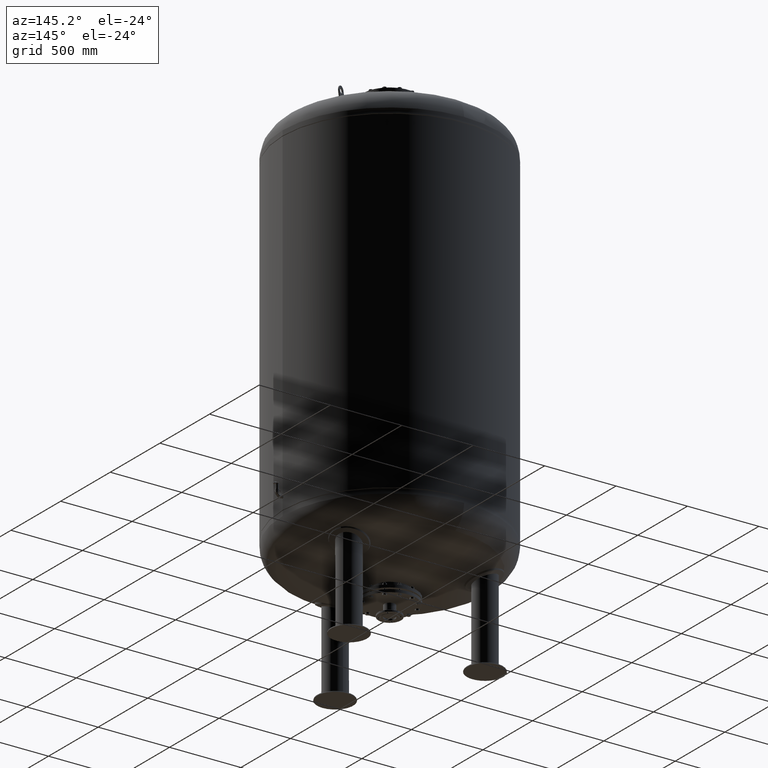
[diagram: clean part render]
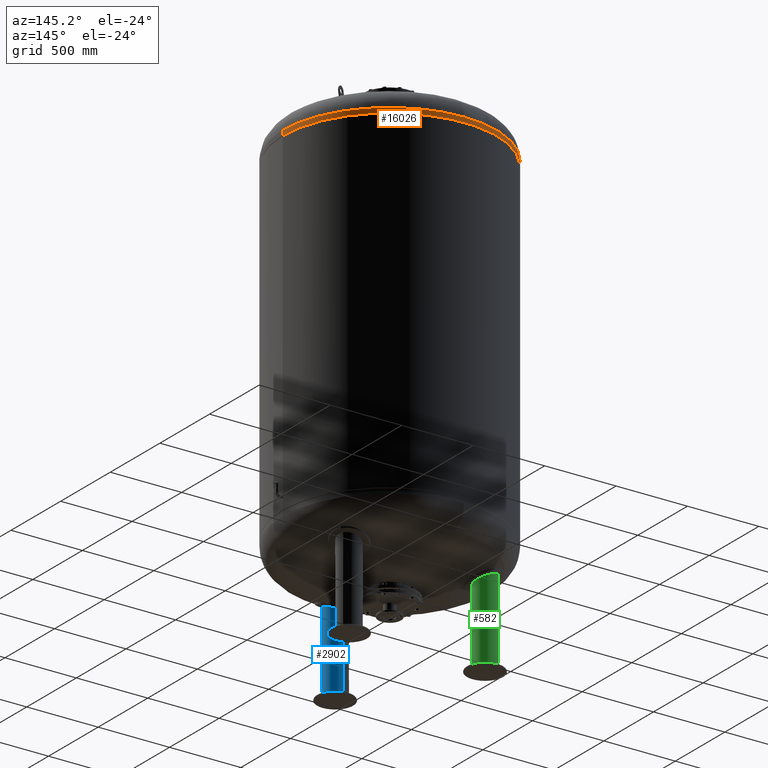
[diagram: same view with three faces highlighted in distinct colors, each labeled with its STEP entity id]
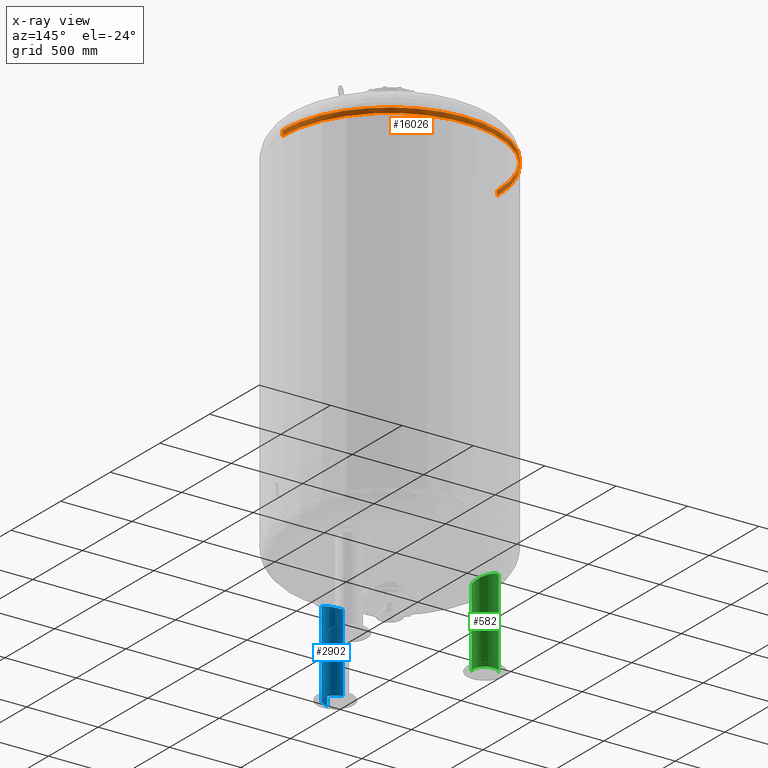
[diagram: x-ray of the same camera — body ghosted, the three highlighted faces saturated]
A machine part, auxiliary view with three faces highlighted in distinct colors.
The next image is the same camera in x-ray (body ghosted, the three faces saturated) — at least one of them is partly hidden behind the body in this view.
Their STEP definitions:

[orange] entity #16026 — the highlighted cylindrical surface (partial cylindrical patch) has radius 750 mm, axis along (0, -0, -1).
#15976=CARTESIAN_POINT('',(1.545938E-014,-5.742715E-014,3196.381166292050700));
#15977=DIRECTION('',(4.945121E-017,-1.836970E-016,-1.0));
#15978=DIRECTION('',(1.0,0.0,0.0));
#15979=AXIS2_PLACEMENT_3D('',#15976,#15977,#15978);
#15980=CYLINDRICAL_SURFACE('',#15979,750.0);
#15981=CARTESIAN_POINT('',(750.0,-6.062002E-014,3179.0));
#15982=VERTEX_POINT('',#15981);
#15983=CARTESIAN_POINT('',(750.0,-5.423428E-014,3213.762332584101800));
#15984=VERTEX_POINT('',#15983);
#15985=CARTESIAN_POINT('',(750.0,-6.062002E-014,3179.0));
#15986=DIRECTION('',(0.0,0.0,1.0));
#15987=VECTOR('',#15986,34.762332584101841);
#15988=LINE('',#15985,#15987);
#15989=EDGE_CURVE('',#15982,#15984,#15988,.T.);
#15990=ORIENTED_EDGE('',*,*,#15989,.F.);
#15991=CARTESIAN_POINT('',(-750.0,3.122546E-014,3179.0));
#15992=VERTEX_POINT('',#15991);
#15993=CARTESIAN_POINT('',(1.631890E-014,-6.062002E-014,3179.0));
#15994=DIRECTION('',(0.0,0.0,-1.0));
#15995=DIRECTION('',(1.0,0.0,0.0));
#15996=AXIS2_PLACEMENT_3D('',#15993,#15994,#15995);
#15997=CIRCLE('',#15996,750.0);
#15998=EDGE_CURVE('',#15992,#15982,#15997,.T.);
#15999=ORIENTED_EDGE('',*,*,#15998,.F.);
#16000=CARTESIAN_POINT('',(-750.0,3.761120E-014,3213.762332584101800));
#16001=VERTEX_POINT('',#16000);
#16002=CARTESIAN_POINT('',(-750.0,3.122546E-014,3179.0));
#16003=DIRECTION('',(0.0,0.0,1.0));
#16004=VECTOR('',#16003,34.762332584101841);
#16005=LINE('',#16002,#16004);
#16006=EDGE_CURVE('',#15992,#16001,#16005,.T.);
#16007=ORIENTED_EDGE('',*,*,#16006,.T.);
#16008=CARTESIAN_POINT('',(1.267436E-013,750.0,3213.762332584101800));
#16009=VERTEX_POINT('',#16008);
#16010=CARTESIAN_POINT('',(1.459986E-014,-5.423428E-014,3213.762332584101800));
#16011=DIRECTION('',(0.0,0.0,-1.0));
#16012=DIRECTION('',(1.0,0.0,0.0));
#16013=AXIS2_PLACEMENT_3D('',#16010,#16011,#16012);
#16014=CIRCLE('',#16013,750.0);
#16015=EDGE_CURVE('',#16001,#16009,#16014,.T.);
#16016=ORIENTED_EDGE('',*,*,#16015,.T.);
#16017=CARTESIAN_POINT('',(1.459986E-014,-5.423428E-014,3213.762332584101800));
#16018=DIRECTION('',(0.0,0.0,-1.0));
#16019=DIRECTION('',(1.0,0.0,0.0));
#16020=AXIS2_PLACEMENT_3D('',#16017,#16018,#16019);
#16021=CIRCLE('',#16020,750.0);
#16022=EDGE_CURVE('',#16009,#15984,#16021,.T.);
#16023=ORIENTED_EDGE('',*,*,#16022,.T.);
#16024=EDGE_LOOP('',(#15990,#15999,#16007,#16016,#16023));
#16025=FACE_OUTER_BOUND('',#16024,.T.);
#16026=ADVANCED_FACE('',(#16025),#15980,.T.);

[blue] entity #2902 — the highlighted cylindrical surface (edge-blend (fillet) strip) has radius 79.5 mm, axis along (0, -0, -1).
#2836=CARTESIAN_POINT('',(-2.905276E-015,-550.0,15.815585141290533));
#2837=DIRECTION('',(1.836970E-016,-3.374460E-032,-1.0));
#2838=DIRECTION('',(0.0,-1.0,0.0));
#2839=AXIS2_PLACEMENT_3D('',#2836,#2837,#2838);
#2840=CYLINDRICAL_SURFACE('',#2839,79.500000000000000);
#2841=CARTESIAN_POINT('',(-1.674052E-014,-629.500000000000000,11.631170282581067));
#2842=VERTEX_POINT('',#2841);
#2843=CARTESIAN_POINT('',(-1.284913E-013,-629.500000000000680,619.974328976416250));
#2844=VERTEX_POINT('',#2843);
#2845=CARTESIAN_POINT('',(-1.674052E-014,-629.500000000000000,11.631170282581067));
#2846=DIRECTION('',(0.0,0.0,1.0));
#2847=VECTOR('',#2846,608.343158693835220);
#2848=LINE('',#2845,#2847);
#2849=EDGE_CURVE('',#2842,#2844,#2848,.T.);
#2850=ORIENTED_EDGE('',*,*,#2849,.F.);
#2851=CARTESIAN_POINT('',(2.220292E-014,-470.500000000000000,11.631170282581067));
#2852=VERTEX_POINT('',#2851);
#2853=CARTESIAN_POINT('',(-2.136611E-015,-550.0,11.631170282581067));
#2854=DIRECTION('',(0.0,0.0,-1.0));
#2855=DIRECTION('',(0.0,-1.0,0.0));
#2856=AXIS2_PLACEMENT_3D('',#2853,#2854,#2855);
#2857=CIRCLE('',#2856,79.500000000000000);
#2858=EDGE_CURVE('',#2852,#2842,#2857,.T.);
#2859=ORIENTED_EDGE('',*,*,#2858,.F.);
#2860=CARTESIAN_POINT('',(-7.182689E-014,-470.500000000000000,557.801446445446690));
#2861=VERTEX_POINT('',#2860);
#2862=CARTESIAN_POINT('',(2.220292E-014,-470.500000000000000,11.631170282581067));
#2863=DIRECTION('',(0.0,0.0,1.0));
#2864=VECTOR('',#2863,546.170276162865660);
#2865=LINE('',#2862,#2864);
#2866=EDGE_CURVE('',#2852,#2861,#2865,.T.);
#2867=ORIENTED_EDGE('',*,*,#2866,.T.);
#2868=CARTESIAN_POINT('',(79.496546794574527,-549.259022444332230,588.259208461118420));
#2869=VERTEX_POINT('',#2868);
#2870=CARTESIAN_POINT('',(-7.182689E-014,-470.500000000000000,557.801446445446690));
#2871=CARTESIAN_POINT('',(8.120663509625709,-470.500000000000000,557.801446445446690));
#2872=CARTESIAN_POINT('',(16.181797699724985,-471.744255828588280,558.277369662588170));
#2873=CARTESIAN_POINT('',(33.164619714983132,-477.098435150620050,560.328261777430270));
#2874=CARTESIAN_POINT('',(41.714366610406451,-481.657352020981760,562.075596332598020));
#2875=CARTESIAN_POINT('',(57.102984846283050,-493.777642472443740,566.734659420112730));
#2876=CARTESIAN_POINT('',(63.659291648246828,-501.375090312636760,569.661195647944850));
#2877=CARTESIAN_POINT('',(73.982822936199739,-519.024244692127350,576.486089468713540));
#2878=CARTESIAN_POINT('',(77.408940630037023,-529.089375858457290,580.391859104990320));
#2879=CARTESIAN_POINT('',(79.232830525971281,-542.704310446537420,585.699021239809100));
#2880=CARTESIAN_POINT('',(79.466003833415044,-545.982189128008940,586.978453284904390));
#2881=CARTESIAN_POINT('',(79.496546794574527,-549.259022444332230,588.259208461118420));
#2882=B_SPLINE_CURVE_WITH_KNOTS('',3,(#2870,#2871,#2872,#2873,#2874,#2875,#2876,#2877,#2878,#2879,#2880,#2881),.UNSPECIFIED.,.F.,.U.,(4,2,2,2,2,4),(25.946274642103887,28.391196783303212,31.323094720106891,34.426409319311013,37.777807879739491,38.832927063683996),.UNSPECIFIED.);
#2883=EDGE_CURVE('',#2861,#2869,#2882,.T.);
#2884=ORIENTED_EDGE('',*,*,#2883,.T.);
#2885=CARTESIAN_POINT('',(79.496546794574527,-549.259022444332230,588.259208461118420));
#2886=CARTESIAN_POINT('',(79.569013932907993,-557.033734660013010,591.297966296070060));
#2887=CARTESIAN_POINT('',(78.500805236188413,-564.802503619152730,594.344322088061060));
#2888=CARTESIAN_POINT('',(73.259584389779818,-582.725585721040150,601.394273940897850));
#2889=CARTESIAN_POINT('',(68.082238002880686,-592.519115795239940,605.264897102246320));
#2890=CARTESIAN_POINT('',(54.397367842830221,-608.873445802111750,611.749699955350710));
#2891=CARTESIAN_POINT('',(46.279319565829432,-615.490667371996890,614.383971692484580));
#2892=CARTESIAN_POINT('',(31.375414450366577,-623.319741512061910,617.505471067215810));
#2893=CARTESIAN_POINT('',(25.415018648142301,-625.599309760025790,618.415766111970470));
#2894=CARTESIAN_POINT('',(12.938638782510688,-628.705585890656830,619.656658887407730));
#2895=CARTESIAN_POINT('',(6.489221034626315,-629.499999999999770,619.974328976416020));
#2896=CARTESIAN_POINT('',(-1.232084E-013,-629.499999999999770,619.974328976416020));
#2897=B_SPLINE_CURVE_WITH_KNOTS('',3,(#2885,#2886,#2887,#2888,#2889,#2890,#2891,#2892,#2893,#2894,#2895,#2896),.UNSPECIFIED.,.F.,.U.,(4,2,2,2,2,4),(38.832927063683996,41.336334230459492,44.806614551580793,48.013896662752792,49.941938919734973,51.888705230122902),.UNSPECIFIED.);
#2898=EDGE_CURVE('',#2869,#2844,#2897,.T.);
#2899=ORIENTED_EDGE('',*,*,#2898,.T.);
#2900=EDGE_LOOP('',(#2850,#2859,#2867,#2884,#2899));
#2901=FACE_OUTER_BOUND('',#2900,.T.);
#2902=ADVANCED_FACE('',(#2901),#2840,.T.);

[green] entity #582 — the highlighted cylindrical surface (edge-blend (fillet) strip) has radius 79.5 mm, axis along (-0, -0, -1).
#172=CARTESIAN_POINT('',(-545.162991682303870,314.750000000000170,11.631170282581067));
#173=VERTEX_POINT('',#172);
#174=CARTESIAN_POINT('',(-545.162991682304440,314.750000000000570,619.974328976416250));
#175=VERTEX_POINT('',#174);
#176=CARTESIAN_POINT('',(-545.162991682303870,314.750000000000170,11.631170282581067));
#177=DIRECTION('',(0.0,0.0,1.0));
#178=VECTOR('',#177,608.343158693835220);
#179=LINE('',#176,#178);
#180=EDGE_CURVE('',#173,#175,#179,.T.);
#182=CARTESIAN_POINT('',(-407.464952480578180,235.250000000000170,11.631170282581067));
#183=VERTEX_POINT('',#182);
#191=CARTESIAN_POINT('',(-407.464952480578180,235.250000000000260,557.801446445446910));
#192=VERTEX_POINT('',#191);
#193=CARTESIAN_POINT('',(-407.464952480578180,235.250000000000170,11.631170282581067));
#194=DIRECTION('',(0.0,0.0,1.0));
#195=VECTOR('',#194,546.170276162865890);
#196=LINE('',#193,#195);
#197=EDGE_CURVE('',#183,#192,#196,.T.);
#279=CARTESIAN_POINT('',(-435.923993297311260,343.475540259406440,588.259208461118190));
#280=VERTEX_POINT('',#279);
#281=CARTESIAN_POINT('',(-435.923993297311260,343.475540259406440,588.259208461118190));
#282=CARTESIAN_POINT('',(-428.294244079324470,338.975168186761320,584.797146556691930));
#283=CARTESIAN_POINT('',(-421.432219721340400,333.208904948055760,581.360502151041940));
#284=CARTESIAN_POINT('',(-408.717320989592170,318.197262877139220,574.174236989335670));
#285=CARTESIAN_POINT('',(-403.428779549836460,308.594560981841990,570.549958778381670));
#286=CARTESIAN_POINT('',(-397.284632061759850,288.348202161642970,564.600364334074580));
#287=CARTESIAN_POINT('',(-396.189586487437450,278.010947247717750,562.252334812652180));
#288=CARTESIAN_POINT('',(-398.071116691458940,257.806862096045790,559.003880738072780));
#289=CARTESIAN_POINT('',(-400.811446048780450,248.180804466063310,558.070588206412370));
#290=CARTESIAN_POINT('',(-405.983358000271100,237.903174880540800,557.818088260262240));
#291=CARTESIAN_POINT('',(-406.705844140872730,236.564814212819360,557.801446445446910));
#292=CARTESIAN_POINT('',(-407.464952480578180,235.250000000000260,557.801446445446910));
#293=B_SPLINE_CURVE_WITH_KNOTS('',3,(#281,#282,#283,#284,#285,#286,#287,#288,#289,#290,#291,#292),.UNSPECIFIED.,.F.,.U.,(4,2,2,2,2,4),(13.058196146459970,15.908544671985489,19.326182717890447,22.493256912797680,25.489178793934588,25.946274642103891),.UNSPECIFIED.);
#294=EDGE_CURVE('',#280,#192,#293,.T.);
#545=CARTESIAN_POINT('',(-545.162991682303870,314.750000000000230,619.974328976416470));
#546=CARTESIAN_POINT('',(-540.366890598841110,323.057090754793250,619.974328976416020));
#547=CARTESIAN_POINT('',(-534.131807051763080,330.386322806354490,619.280247607236110));
#548=CARTESIAN_POINT('',(-519.299997618791620,342.575536920710310,616.585819491894090));
#549=CARTESIAN_POINT('',(-510.836973519929240,347.237482487707440,614.592514188904490));
#550=CARTESIAN_POINT('',(-492.270020921124510,353.538138546992400,609.453155597640030));
#551=CARTESIAN_POINT('',(-482.267074518463970,354.891128663840110,606.286372499794770));
#552=CARTESIAN_POINT('',(-461.710332890184700,353.875417057553700,599.055880090259170));
#553=CARTESIAN_POINT('',(-451.315557892037930,351.203205063835870,594.989155554557560));
#554=CARTESIAN_POINT('',(-439.795744250857180,345.651357521946810,589.995750597807050));
#555=CARTESIAN_POINT('',(-437.835763685399060,344.603189126760750,589.126690109794940));
#556=CARTESIAN_POINT('',(-435.923993297311260,343.475540259406440,588.259208461118190));
#557=B_SPLINE_CURVE_WITH_KNOTS('',3,(#545,#546,#547,#548,#549,#550,#551,#552,#553,#554,#555,#556),.UNSPECIFIED.,.F.,.U.,(4,2,2,2,2,4),(0.0,2.877660650077480,5.813761654146234,8.951189755024860,12.343990246483170,13.058196146459970),.UNSPECIFIED.);
#558=EDGE_CURVE('',#175,#280,#557,.T.);
#564=CARTESIAN_POINT('',(-476.313972081441020,275.000000000000170,15.815585141290533));
#565=DIRECTION('',(-9.184851E-017,-1.590863E-016,-1.0));
#566=DIRECTION('',(-0.866025403784439,0.500000000000000,0.0));
#567=AXIS2_PLACEMENT_3D('',#564,#565,#566);
#568=CYLINDRICAL_SURFACE('',#567,79.500000000000000);
#569=ORIENTED_EDGE('',*,*,#180,.T.);
#570=ORIENTED_EDGE('',*,*,#558,.T.);
#571=ORIENTED_EDGE('',*,*,#294,.T.);
#572=ORIENTED_EDGE('',*,*,#197,.F.);
#573=CARTESIAN_POINT('',(-476.313972081441020,275.000000000000170,11.631170282581067));
#574=DIRECTION('',(0.0,0.0,-1.0));
#575=DIRECTION('',(-0.866025403784439,0.500000000000000,0.0));
#576=AXIS2_PLACEMENT_3D('',#573,#574,#575);
#577=CIRCLE('',#576,79.500000000000000);
#578=EDGE_CURVE('',#173,#183,#577,.T.);
#579=ORIENTED_EDGE('',*,*,#578,.F.);
#580=EDGE_LOOP('',(#569,#570,#571,#572,#579));
#581=FACE_OUTER_BOUND('',#580,.T.);
#582=ADVANCED_FACE('',(#581),#568,.T.);